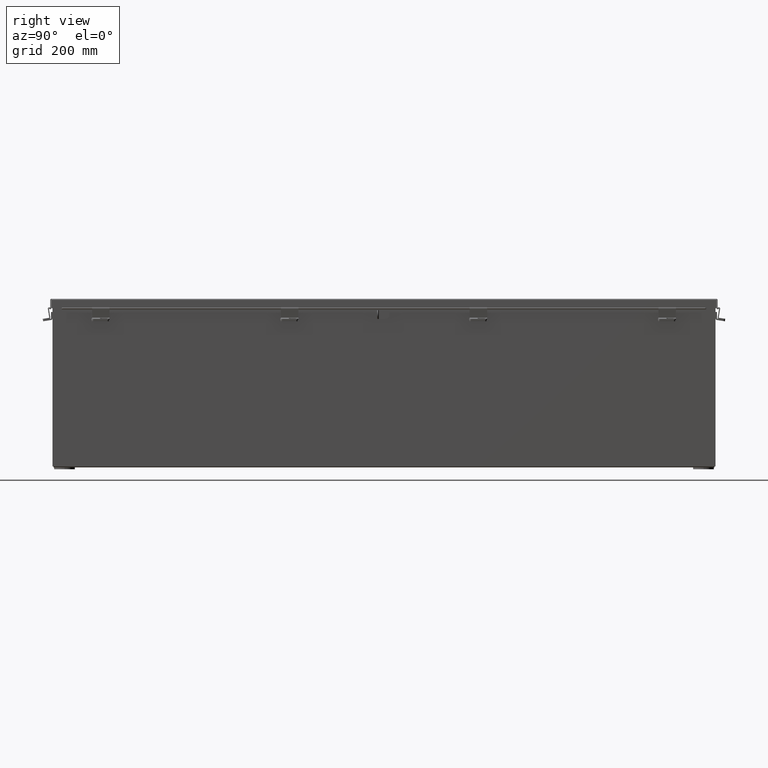
[diagram: clean part render]
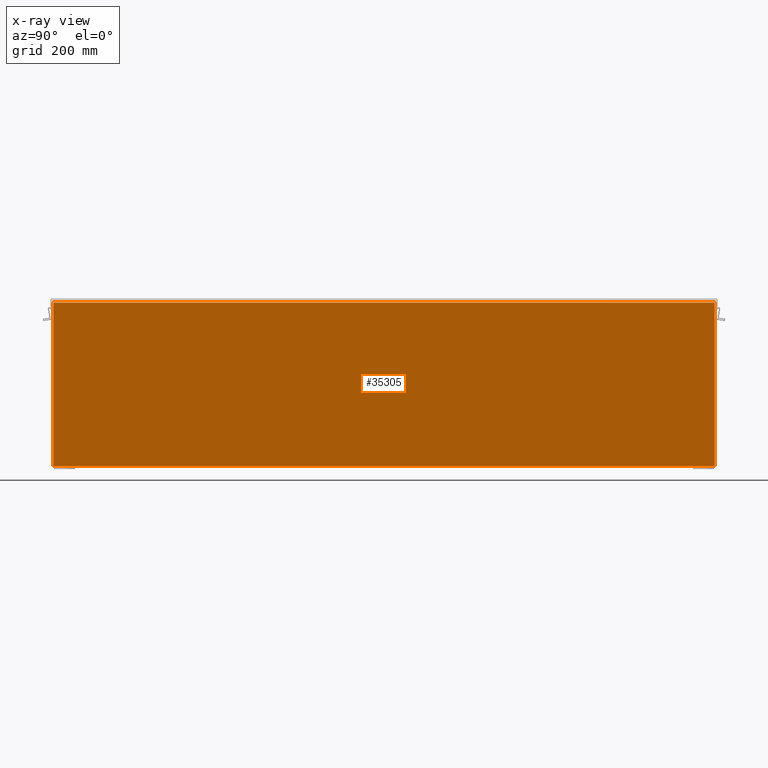
[diagram: x-ray — body ghosted, one internal face saturated and labeled with its STEP entity id]
A machine part, right view, then the same camera in x-ray: the body is ghosted and one INTERNAL B-rep face — a face not visible from any outside direction — is saturated and labeled: STEP entity #35305.
In plain terms, the highlighted planar face has unit normal (-1, 0, 0).
Its self-contained STEP definition (entity closure, byte-faithful):
#324 = VERTEX_POINT ( 'NONE', #36682 ) ;
#986 = CARTESIAN_POINT ( 'NONE',  ( 5.925300000000040000, -23.92529999999998900, 11.83759999999999800 ) ) ;
#5670 = CARTESIAN_POINT ( 'NONE',  ( 5.925300000000040000, 23.92529999999998900, 11.83759999999999800 ) ) ;
#5842 = AXIS2_PLACEMENT_3D ( 'NONE', #18907, #10527, #30284 ) ;
#5923 = VECTOR ( 'NONE', #28502, 39.37007874015748100 ) ;
#7080 = VERTEX_POINT ( 'NONE', #986 ) ;
#7701 = PLANE ( 'NONE',  #5842 ) ;
#8518 = CARTESIAN_POINT ( 'NONE',  ( 5.925300000000040000, 23.92529999999998900, 11.85060000000000000 ) ) ;
#10268 = VERTEX_POINT ( 'NONE', #13451 ) ;
#10527 = DIRECTION ( 'NONE',  ( -1.000000000000000000, 0.0000000000000000000, 3.503965158194251300E-015 ) ) ;
#12678 = EDGE_CURVE ( 'NONE', #10268, #30241, #34706, .T. ) ;
#12839 = VECTOR ( 'NONE', #27986, 39.37007874015748100 ) ;
#13219 = ORIENTED_EDGE ( 'NONE', *, *, #12678, .F. ) ;
#13451 = CARTESIAN_POINT ( 'NONE',  ( 5.925299999999998200, 23.92529999999998900, 0.01299999999999956900 ) ) ;
#16613 = CARTESIAN_POINT ( 'NONE',  ( 5.925299999999998200, -23.92529999999998900, 0.01300000000000011600 ) ) ;
#17405 = ORIENTED_EDGE ( 'NONE', *, *, #32972, .F. ) ;
#17469 = VECTOR ( 'NONE', #34496, 39.37007874015748100 ) ;
#18352 = LINE ( 'NONE', #25932, #17469 ) ;
#18907 = CARTESIAN_POINT ( 'NONE',  ( 5.925299999999998200, 0.0000000000000000000, -2.102669252623462500E-014 ) ) ;
#20159 = EDGE_LOOP ( 'NONE', ( #35992, #17405, #13219, #20739 ) ) ;
#20739 = ORIENTED_EDGE ( 'NONE', *, *, #29218, .F. ) ;
#20909 = LINE ( 'NONE', #5670, #5923 ) ;
#21480 = CARTESIAN_POINT ( 'NONE',  ( 5.925300000000040000, 23.92529999999998900, 11.83759999999999800 ) ) ;
#25630 = EDGE_CURVE ( 'NONE', #7080, #324, #18352, .T. ) ;
#25932 = CARTESIAN_POINT ( 'NONE',  ( 5.925299999999998200, -23.92529999999998900, 0.0000000000000000000 ) ) ;
#27131 = VECTOR ( 'NONE', #28264, 39.37007874015748100 ) ;
#27986 = DIRECTION ( 'NONE',  ( -8.001822495251853600E-032, 1.000000000000000000, -2.283647848649142500E-017 ) ) ;
#28264 = DIRECTION ( 'NONE',  ( 3.503965158194252100E-015, -3.688384377046581100E-016, 1.000000000000000000 ) ) ;
#28502 = DIRECTION ( 'NONE',  ( -0.0000000000000000000, -1.000000000000000000, -0.0000000000000000000 ) ) ;
#29218 = EDGE_CURVE ( 'NONE', #324, #10268, #35440, .T. ) ;
#30241 = VERTEX_POINT ( 'NONE', #21480 ) ;
#30284 = DIRECTION ( 'NONE',  ( 3.503965158194251300E-015, 0.0000000000000000000, 1.000000000000000000 ) ) ;
#30907 = FACE_OUTER_BOUND ( 'NONE', #20159, .T. ) ;
#32972 = EDGE_CURVE ( 'NONE', #30241, #7080, #20909, .T. ) ;
#34496 = DIRECTION ( 'NONE',  ( -3.503965158194252100E-015, -0.0000000000000000000, -1.000000000000000000 ) ) ;
#34706 = LINE ( 'NONE', #8518, #27131 ) ;
#35305 = ADVANCED_FACE ( 'NONE', ( #30907 ), #7701, .T. ) ;
#35440 = LINE ( 'NONE', #16613, #12839 ) ;
#35992 = ORIENTED_EDGE ( 'NONE', *, *, #25630, .F. ) ;
#36682 = CARTESIAN_POINT ( 'NONE',  ( 5.925299999999998200, -23.92529999999998900, 0.01299999999999956900 ) ) ;